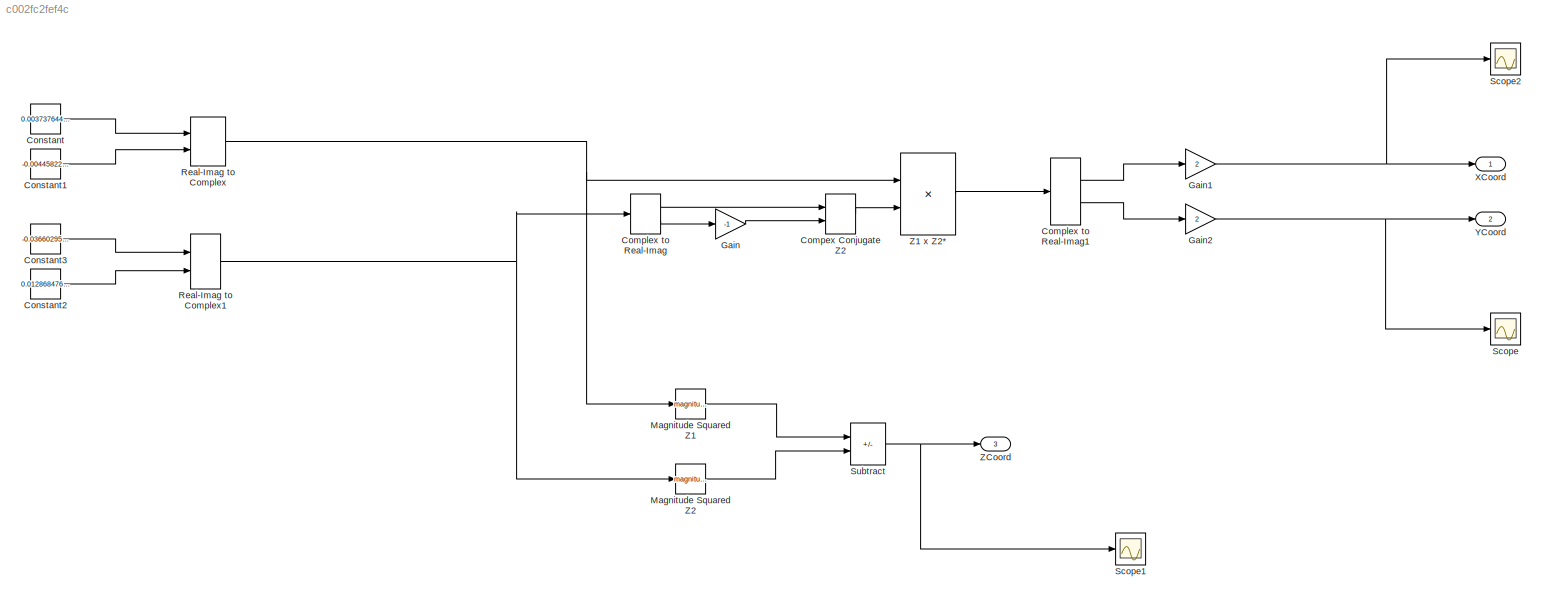
MODEL slx_c002fc2fef4c
KIND model
CONFIG AbsTol = auto
CONFIG EnableMultiTasking = off
CONFIG FixedStep = auto
CONFIG MaxStep = auto
CONFIG MinStep = auto
CONFIG RelTol = 1e-3
CONFIG SampleTimeConstraint = Unconstrained
CONFIG Solver = VariableStepAuto
CONFIG SolverName = VariableStepAuto
CONFIG StartTime = 0.0
CONFIG StopTime = 10.0
BLOCK [RealImagToComplex] Compex Conjugate Z2
  Ports = [2, 1]
BLOCK [ComplexToRealImag] Complex to Real-Imag
  Ports = [1, 2]
BLOCK [ComplexToRealImag] Complex to Real-Imag1
  Ports = [1, 2]
BLOCK [Constant] Constant
  OutDataTypeStr = fixdt(1,22,20)
  Value = 0.003737644395848511
BLOCK [Constant] Constant1
  OutDataTypeStr = fixdt(1,22,20)
  Value = -0.004458220240095407
BLOCK [Constant] Constant2
  OutDataTypeStr = fixdt(1,22,20)
  Value = 0.01286847631193617
BLOCK [Constant] Constant3
  OutDataTypeStr = fixdt(1,22,20)
  Value = -0.03660295957997496
BLOCK [Gain] Gain
  Gain = -1
  OutDataTypeStr = fixdt(1,22,20)
  SaturateOnIntegerOverflow = on
BLOCK [Gain] Gain1
  Gain = 2
  OutDataTypeStr = fixdt(1,22,20)
  SaturateOnIntegerOverflow = on
BLOCK [Gain] Gain2
  Gain = 2
  OutDataTypeStr = fixdt(1,22,20)
  SaturateOnIntegerOverflow = on
BLOCK [Math] Magnitude Squared Z1
  Operator = magnitude^2
  OutDataTypeStr = fixdt(1,22,20)
  Ports = [1, 1]
BLOCK [Math] Magnitude Squared Z2
  Operator = magnitude^2
  OutDataTypeStr = fixdt(1,22,20)
  Ports = [1, 1]
BLOCK [RealImagToComplex] Real-Imag to Complex
  Ports = [2, 1]
BLOCK [RealImagToComplex] Real-Imag to Complex1
  Ports = [2, 1]
BLOCK [Scope] Scope
  Floating = off
  NumInputPorts = 1
  Ports = [1]
  ScopeSpecificationString = Simulink.scopes.TimeScopeBlockCfg('CurrentConfiguration', extmgr.ConfigurationSet(extmgr.Configuration('Core','General UI',true),extmgr.Configuration('Core','Source UI',true),extmgr.Configuration('Sources','WiredSimulink',true),extmgr.Configuration('Visuals','Time Domain',true,'SerializedDisplays',{struct('MinYLimReal','0.00013','MaxYLimReal','0.00033','YLabelReal','','MinYLimMag','0.00013','MaxYL...<+1358ch>
BLOCK [Scope] Scope1
  Floating = off
  NumInputPorts = 1
  Ports = [1]
  ScopeSpecificationString = Simulink.scopes.TimeScopeBlockCfg('CurrentConfiguration', extmgr.ConfigurationSet(extmgr.Configuration('Core','General UI',true),extmgr.Configuration('Core','Source UI',true),extmgr.Configuration('Sources','WiredSimulink',true,'DataLoggingVariableName','ScopeData1'),extmgr.Configuration('Visuals','Time Domain',true),extmgr.Configuration('Tools','Plot Navigation',true),extmgr.Configuration('Tools',...<+58ch>
BLOCK [Scope] Scope2
  Floating = off
  NumInputPorts = 1
  Ports = [1]
  ScopeSpecificationString = Simulink.scopes.TimeScopeBlockCfg('CurrentConfiguration', extmgr.ConfigurationSet(extmgr.Configuration('Core','General UI',true),extmgr.Configuration('Core','Source UI',true),extmgr.Configuration('Sources','WiredSimulink',true,'DataLoggingVariableName','ScopeData2'),extmgr.Configuration('Visuals','Time Domain',true),extmgr.Configuration('Tools','Plot Navigation',true),extmgr.Configuration('Tools',...<+58ch>
BLOCK [Sum] Subtract
  AccumDataTypeStr = fixdt(1,32,20)
  IconShape = rectangular
  Inputs = +-
  Ports = [2, 1]
BLOCK [Outport] XCoord
  OutDataTypeStr = fixdt(1,22,20)
BLOCK [Outport] YCoord
  OutDataTypeStr = fixdt(1,22,20)
  Port = 2
BLOCK [Product] Z1 x Z2*
  NameLocation = top
  OutDataTypeStr = fixdt(1,22,20)
  Ports = [2, 1]
BLOCK [Outport] ZCoord
  OutDataTypeStr = fixdt(1,32,20)
  Port = 3
LINE Compex Conjugate Z2:1 -> Z1 x Z2*:2
LINE Complex to Real-Imag1:1 -> Gain1:1
LINE Complex to Real-Imag1:2 -> Gain2:1
LINE Complex to Real-Imag:1 -> Compex Conjugate Z2:1
LINE Complex to Real-Imag:2 -> Gain:1
LINE Constant1:1 -> Real-Imag to Complex:2
LINE Constant2:1 -> Real-Imag to Complex1:2
LINE Constant3:1 -> Real-Imag to Complex1:1
LINE Constant:1 -> Real-Imag to Complex:1
NET Gain1:1 -> Scope2:1, XCoord:1
NET Gain2:1 -> Scope:1, YCoord:1
LINE Gain:1 -> Compex Conjugate Z2:2
LINE Magnitude Squared Z1:1 -> Subtract:1
LINE Magnitude Squared Z2:1 -> Subtract:2
NET Real-Imag to Complex1:1 -> Complex to Real-Imag:1, Magnitude Squared Z2:1
NET Real-Imag to Complex:1 -> Magnitude Squared Z1:1, Z1 x Z2*:1
NET Subtract:1 -> Scope1:1, ZCoord:1
LINE Z1 x Z2*:1 -> Complex to Real-Imag1:1
note: NET lines group one-source signal fan-out (src -> all destinations, sorted); 1:1 wires keep LINE
